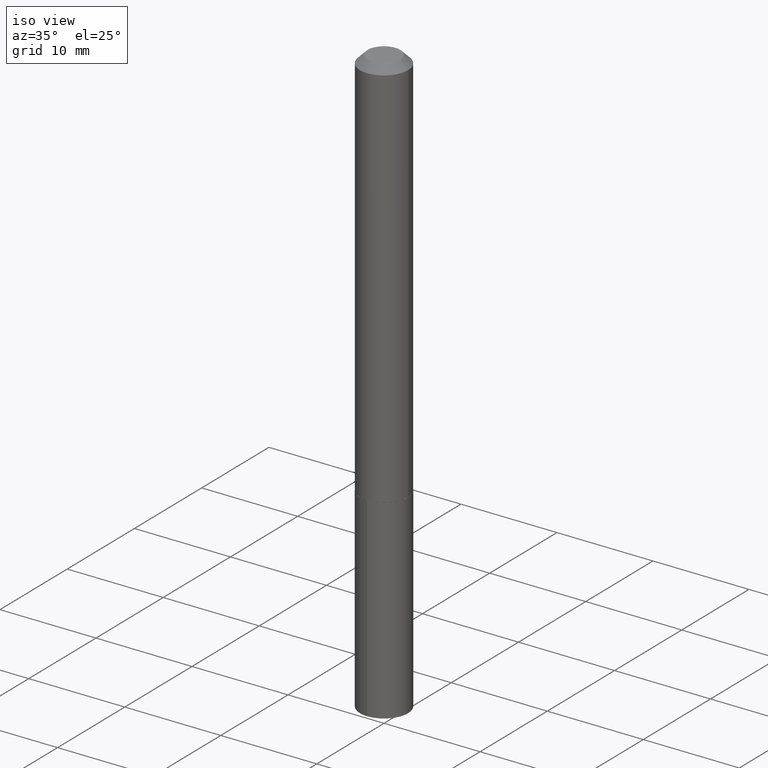
[diagram: clean part render]
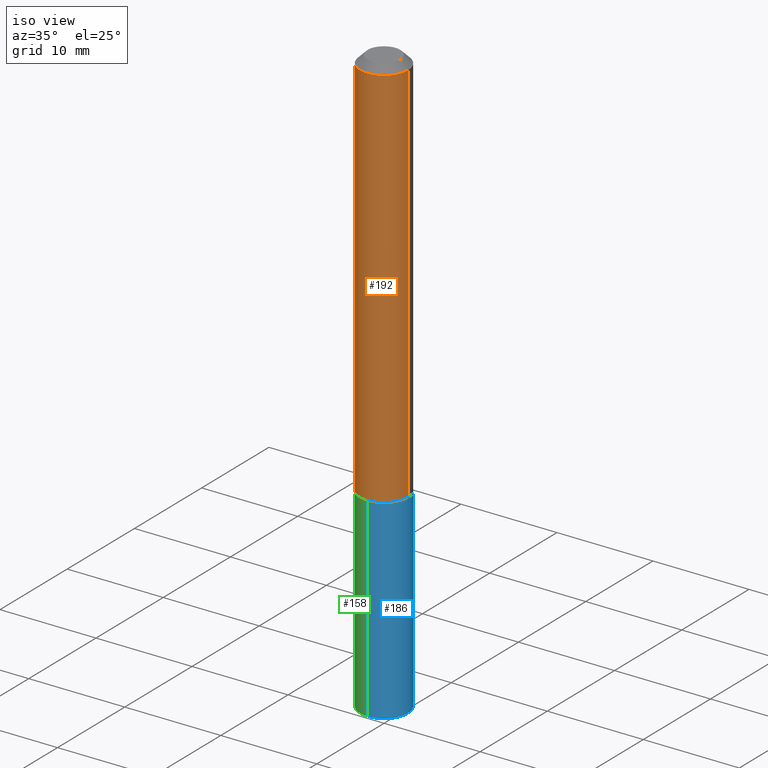
[diagram: same view with three faces highlighted in distinct colors, each labeled with its STEP entity id]
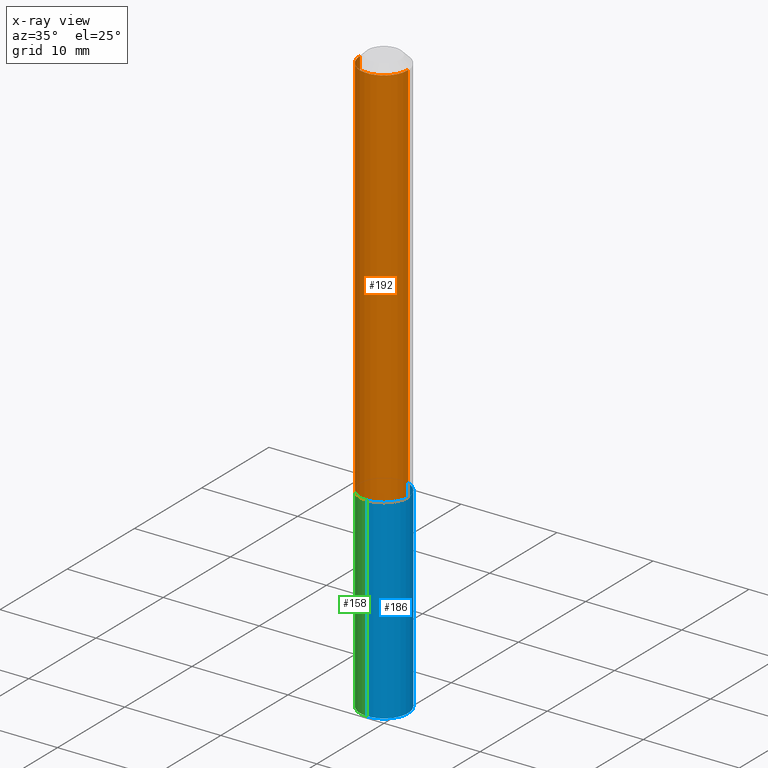
[diagram: x-ray of the same camera — body ghosted, the three highlighted faces saturated]
A machine part, iso view with three faces highlighted in distinct colors.
The next image is the same camera in x-ray (body ghosted, the three faces saturated) — at least one of them is partly hidden behind the body in this view.
Their STEP definitions:

[orange] entity #192 — the highlighted cylindrical surface (edge-blend (fillet) strip) has radius 2.5006 mm, axis along (-0, 0, 1).
#11 = DIRECTION ( 'NONE',  ( -2.445468806185136877E-29, 3.491481338843145188E-15, 1.000000000000000000 ) ) ;
#12 = VERTEX_POINT ( 'NONE', #174 ) ;
#14 = LINE ( 'NONE', #284, #69 ) ;
#30 = DIRECTION ( 'NONE',  ( 1.000000000000000000, -6.982962677686266711E-15, 0.000000000000000000 ) ) ;
#31 = DIRECTION ( 'NONE',  ( -2.445468806185136597E-29, 3.491481338843145583E-15, 1.000000000000000000 ) ) ;
#33 = DIRECTION ( 'NONE',  ( -2.445468806185136597E-29, 3.491481338843145583E-15, 1.000000000000000000 ) ) ;
#69 = VECTOR ( 'NONE', #11, 39.37007874015748143 ) ;
#76 = ORIENTED_EDGE ( 'NONE', *, *, #280, .T. ) ;
#90 = AXIS2_PLACEMENT_3D ( 'NONE', #295, #342, #312 ) ;
#92 = CARTESIAN_POINT ( 'NONE',  ( -0.09845000000000020401, -4.934674113135364966E-15, -1.613700000000000134 ) ) ;
#95 = LINE ( 'NONE', #182, #371 ) ;
#102 = ORIENTED_EDGE ( 'NONE', *, *, #368, .F. ) ;
#118 = VERTEX_POINT ( 'NONE', #141 ) ;
#120 = DIRECTION ( 'NONE',  ( 1.000000000000000000, -6.982962677686269866E-15, 0.000000000000000000 ) ) ;
#141 = CARTESIAN_POINT ( 'NONE',  ( -0.09845000000000000973, -2.172126790809196006E-15, -0.03125000000000020817 ) ) ;
#149 = CARTESIAN_POINT ( 'NONE',  ( 3.946253012540955150E-29, -5.634203436491184654E-15, -1.613700000000000134 ) ) ;
#150 = CARTESIAN_POINT ( 'NONE',  ( 7.642090019328602662E-31, -1.091087918388490267E-16, -0.03125000000000020817 ) ) ;
#151 = EDGE_CURVE ( 'NONE', #351, #12, #14, .T. ) ;
#167 = EDGE_LOOP ( 'NONE', ( #102, #76, #187, #269 ) ) ;
#170 = CYLINDRICAL_SURFACE ( 'NONE', #90, 0.09845000000000010687 ) ;
#174 = CARTESIAN_POINT ( 'NONE',  ( 0.09845000000000000973, -7.965814674570621538E-16, -0.03125000000000020817 ) ) ;
#182 = CARTESIAN_POINT ( 'NONE',  ( -0.09845000000000010687, 6.995293233558193923E-16, -4.842691596355960348E-30 ) ) ;
#183 = AXIS2_PLACEMENT_3D ( 'NONE', #149, #31, #120 ) ;
#187 = ORIENTED_EDGE ( 'NONE', *, *, #151, .T. ) ;
#192 = ADVANCED_FACE ( 'NONE', ( #381 ), #170, .T. ) ;
#235 = EDGE_CURVE ( 'NONE', #118, #12, #377, .T. ) ;
#269 = ORIENTED_EDGE ( 'NONE', *, *, #235, .F. ) ;
#280 = EDGE_CURVE ( 'NONE', #315, #351, #362, .T. ) ;
#284 = CARTESIAN_POINT ( 'NONE',  ( 0.09845000000000010687, -6.874726756182137434E-16, 4.800596035771104119E-30 ) ) ;
#295 = CARTESIAN_POINT ( 'NONE',  ( 0.000000000000000000, 0.000000000000000000, 0.000000000000000000 ) ) ;
#312 = DIRECTION ( 'NONE',  ( 1.000000000000000000, -6.982962677686267499E-15, 4.876176775795935793E-29 ) ) ;
#315 = VERTEX_POINT ( 'NONE', #92 ) ;
#335 = CARTESIAN_POINT ( 'NONE',  ( 0.09845000000000020401, -6.321676112109399581E-15, -1.613700000000000134 ) ) ;
#342 = DIRECTION ( 'NONE',  ( -2.445468806185136597E-29, 3.491481338843145583E-15, 1.000000000000000000 ) ) ;
#351 = VERTEX_POINT ( 'NONE', #335 ) ;
#362 = CIRCLE ( 'NONE', #183, 0.09845000000000020401 ) ;
#365 = DIRECTION ( 'NONE',  ( -2.445468806185136877E-29, 3.491481338843145188E-15, 1.000000000000000000 ) ) ;
#368 = EDGE_CURVE ( 'NONE', #315, #118, #95, .T. ) ;
#371 = VECTOR ( 'NONE', #365, 39.37007874015748143 ) ;
#377 = CIRCLE ( 'NONE', #390, 0.09845000000000000973 ) ;
#381 = FACE_OUTER_BOUND ( 'NONE', #167, .T. ) ;
#390 = AXIS2_PLACEMENT_3D ( 'NONE', #150, #33, #30 ) ;

[blue] entity #186 — the highlighted cylindrical surface (edge-blend (fillet) strip) has radius 2.5006 mm, axis along (-0, 0, 1).
#17 = CARTESIAN_POINT ( 'NONE',  ( -6.874726756181734128E-16, -0.09845000000000563023, -1.614199999999999635 ) ) ;
#25 = CIRCLE ( 'NONE', #214, 0.09844999999999999585 ) ;
#27 = DIRECTION ( 'NONE',  ( -6.982962677686265922E-15, -1.000000000000000000, 2.774858297271979165E-15 ) ) ;
#35 = EDGE_CURVE ( 'NONE', #191, #229, #25, .T. ) ;
#39 = DIRECTION ( 'NONE',  ( -6.982962677686265922E-15, -1.000000000000000000, 2.774858297271979165E-15 ) ) ;
#74 = CARTESIAN_POINT ( 'NONE',  ( -6.874726756181734128E-16, -0.09845000000000563023, -1.614199999999999635 ) ) ;
#79 = FACE_OUTER_BOUND ( 'NONE', #135, .T. ) ;
#82 = CARTESIAN_POINT ( 'NONE',  ( -6.874726756181536913E-16, -0.09845000000000840579, -2.414520402005156274 ) ) ;
#87 = EDGE_CURVE ( 'NONE', #229, #376, #194, .T. ) ;
#88 = CARTESIAN_POINT ( 'NONE',  ( 5.904625600311352834E-29, -8.430265420109503020E-15, -2.414520402005156718 ) ) ;
#126 = EDGE_CURVE ( 'NONE', #191, #137, #257, .T. ) ;
#127 = DIRECTION ( 'NONE',  ( -2.445457904688896865E-29, 3.491496950406235552E-15, 1.000000000000000000 ) ) ;
#135 = EDGE_LOOP ( 'NONE', ( #340, #343, #388, #380 ) ) ;
#137 = VERTEX_POINT ( 'NONE', #74 ) ;
#146 = VECTOR ( 'NONE', #292, 39.37007874015748143 ) ;
#168 = CARTESIAN_POINT ( 'NONE',  ( 3.947475746944047390E-29, -5.635949177160606158E-15, -1.614199999999999857 ) ) ;
#179 = VECTOR ( 'NONE', #226, 39.37007874015748143 ) ;
#186 = ADVANCED_FACE ( 'NONE', ( #79 ), #323, .T. ) ;
#191 = VERTEX_POINT ( 'NONE', #82 ) ;
#194 = LINE ( 'NONE', #314, #146 ) ;
#206 = CIRCLE ( 'NONE', #250, 0.09844999999999999585 ) ;
#210 = CARTESIAN_POINT ( 'NONE',  ( 6.995293233558776694E-16, 0.09844999999999436147, -1.614200000000000301 ) ) ;
#214 = AXIS2_PLACEMENT_3D ( 'NONE', #88, #324, #27 ) ;
#215 = CARTESIAN_POINT ( 'NONE',  ( 3.947475746944047390E-29, -5.635949177160606158E-15, -1.614199999999999857 ) ) ;
#226 = DIRECTION ( 'NONE',  ( -2.445457904688896865E-29, 3.491496950406235552E-15, 1.000000000000000000 ) ) ;
#229 = VERTEX_POINT ( 'NONE', #286 ) ;
#231 = DIRECTION ( 'NONE',  ( -6.982962677686265922E-15, -1.000000000000000000, 2.774858297271979165E-15 ) ) ;
#250 = AXIS2_PLACEMENT_3D ( 'NONE', #215, #127, #39 ) ;
#257 = LINE ( 'NONE', #17, #179 ) ;
#286 = CARTESIAN_POINT ( 'NONE',  ( 6.995293233558774722E-16, 0.09844999999999154427, -2.414520402005156718 ) ) ;
#292 = DIRECTION ( 'NONE',  ( -2.445457904688896865E-29, 3.491496950406235552E-15, 1.000000000000000000 ) ) ;
#314 = CARTESIAN_POINT ( 'NONE',  ( 6.995293233558578493E-16, 0.09844999999999436147, -1.614200000000000301 ) ) ;
#323 = CYLINDRICAL_SURFACE ( 'NONE', #328, 0.09844999999999999585 ) ;
#324 = DIRECTION ( 'NONE',  ( -2.445457904688896865E-29, 3.491496950406235552E-15, 1.000000000000000000 ) ) ;
#328 = AXIS2_PLACEMENT_3D ( 'NONE', #168, #383, #231 ) ;
#340 = ORIENTED_EDGE ( 'NONE', *, *, #35, .T. ) ;
#343 = ORIENTED_EDGE ( 'NONE', *, *, #87, .T. ) ;
#356 = EDGE_CURVE ( 'NONE', #137, #376, #206, .T. ) ;
#376 = VERTEX_POINT ( 'NONE', #210 ) ;
#380 = ORIENTED_EDGE ( 'NONE', *, *, #126, .F. ) ;
#383 = DIRECTION ( 'NONE',  ( -2.445457904688896865E-29, 3.491496950406235552E-15, 1.000000000000000000 ) ) ;
#388 = ORIENTED_EDGE ( 'NONE', *, *, #356, .F. ) ;

[green] entity #158 — the highlighted cylindrical surface (edge-blend (fillet) strip) has radius 2.5006 mm, axis along (-0, 0, 1).
#13 = EDGE_CURVE ( 'NONE', #376, #137, #175, .T. ) ;
#17 = CARTESIAN_POINT ( 'NONE',  ( -6.874726756181734128E-16, -0.09845000000000563023, -1.614199999999999635 ) ) ;
#49 = DIRECTION ( 'NONE',  ( -6.982962677686265922E-15, -1.000000000000000000, 2.774858297271979165E-15 ) ) ;
#55 = DIRECTION ( 'NONE',  ( -2.445457904688896865E-29, 3.491496950406235552E-15, 1.000000000000000000 ) ) ;
#59 = AXIS2_PLACEMENT_3D ( 'NONE', #193, #261, #49 ) ;
#74 = CARTESIAN_POINT ( 'NONE',  ( -6.874726756181734128E-16, -0.09845000000000563023, -1.614199999999999635 ) ) ;
#77 = DIRECTION ( 'NONE',  ( -6.982962677686265922E-15, -1.000000000000000000, 2.774858297271979165E-15 ) ) ;
#78 = ORIENTED_EDGE ( 'NONE', *, *, #164, .T. ) ;
#82 = CARTESIAN_POINT ( 'NONE',  ( -6.874726756181536913E-16, -0.09845000000000840579, -2.414520402005156274 ) ) ;
#85 = DIRECTION ( 'NONE',  ( -6.982962677686265922E-15, -1.000000000000000000, 2.774858297271979165E-15 ) ) ;
#87 = EDGE_CURVE ( 'NONE', #229, #376, #194, .T. ) ;
#97 = CIRCLE ( 'NONE', #59, 0.09844999999999999585 ) ;
#115 = CARTESIAN_POINT ( 'NONE',  ( 3.947475746944047390E-29, -5.635949177160606158E-15, -1.614199999999999857 ) ) ;
#126 = EDGE_CURVE ( 'NONE', #191, #137, #257, .T. ) ;
#130 = EDGE_LOOP ( 'NONE', ( #283, #78, #145, #251 ) ) ;
#137 = VERTEX_POINT ( 'NONE', #74 ) ;
#138 = CARTESIAN_POINT ( 'NONE',  ( 3.947475746944047390E-29, -5.635949177160606158E-15, -1.614199999999999857 ) ) ;
#145 = ORIENTED_EDGE ( 'NONE', *, *, #126, .T. ) ;
#146 = VECTOR ( 'NONE', #292, 39.37007874015748143 ) ;
#158 = ADVANCED_FACE ( 'NONE', ( #347 ), #188, .T. ) ;
#164 = EDGE_CURVE ( 'NONE', #229, #191, #97, .T. ) ;
#175 = CIRCLE ( 'NONE', #299, 0.09844999999999999585 ) ;
#179 = VECTOR ( 'NONE', #226, 39.37007874015748143 ) ;
#188 = CYLINDRICAL_SURFACE ( 'NONE', #220, 0.09844999999999999585 ) ;
#191 = VERTEX_POINT ( 'NONE', #82 ) ;
#193 = CARTESIAN_POINT ( 'NONE',  ( 5.904625600311352834E-29, -8.430265420109503020E-15, -2.414520402005156718 ) ) ;
#194 = LINE ( 'NONE', #314, #146 ) ;
#210 = CARTESIAN_POINT ( 'NONE',  ( 6.995293233558776694E-16, 0.09844999999999436147, -1.614200000000000301 ) ) ;
#220 = AXIS2_PLACEMENT_3D ( 'NONE', #138, #55, #77 ) ;
#226 = DIRECTION ( 'NONE',  ( -2.445457904688896865E-29, 3.491496950406235552E-15, 1.000000000000000000 ) ) ;
#229 = VERTEX_POINT ( 'NONE', #286 ) ;
#251 = ORIENTED_EDGE ( 'NONE', *, *, #13, .F. ) ;
#257 = LINE ( 'NONE', #17, #179 ) ;
#261 = DIRECTION ( 'NONE',  ( -2.445457904688896865E-29, 3.491496950406235552E-15, 1.000000000000000000 ) ) ;
#283 = ORIENTED_EDGE ( 'NONE', *, *, #87, .F. ) ;
#286 = CARTESIAN_POINT ( 'NONE',  ( 6.995293233558774722E-16, 0.09844999999999154427, -2.414520402005156718 ) ) ;
#292 = DIRECTION ( 'NONE',  ( -2.445457904688896865E-29, 3.491496950406235552E-15, 1.000000000000000000 ) ) ;
#299 = AXIS2_PLACEMENT_3D ( 'NONE', #115, #361, #85 ) ;
#314 = CARTESIAN_POINT ( 'NONE',  ( 6.995293233558578493E-16, 0.09844999999999436147, -1.614200000000000301 ) ) ;
#347 = FACE_OUTER_BOUND ( 'NONE', #130, .T. ) ;
#361 = DIRECTION ( 'NONE',  ( -2.445457904688896865E-29, 3.491496950406235552E-15, 1.000000000000000000 ) ) ;
#376 = VERTEX_POINT ( 'NONE', #210 ) ;